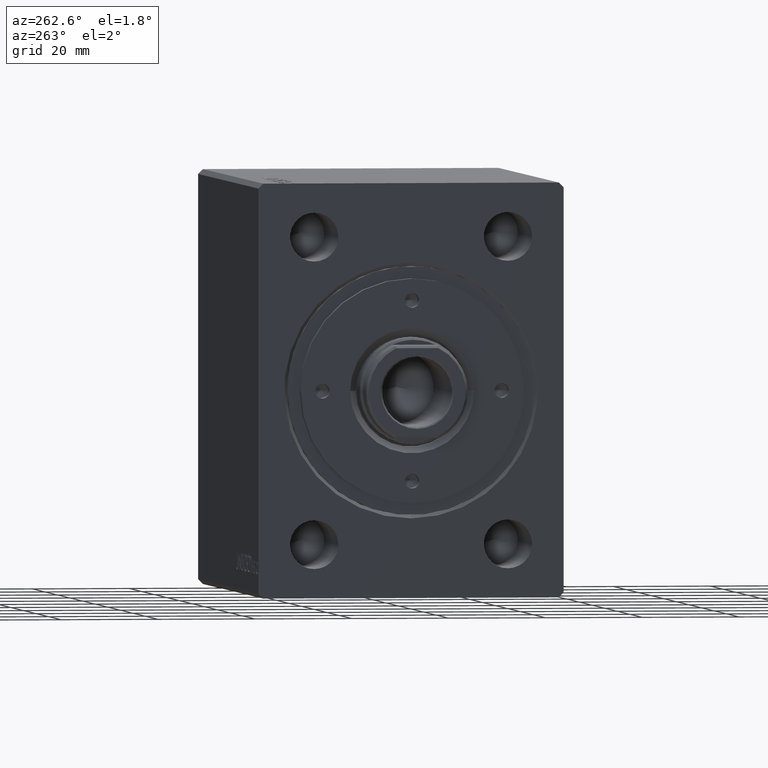
[diagram: clean part render]
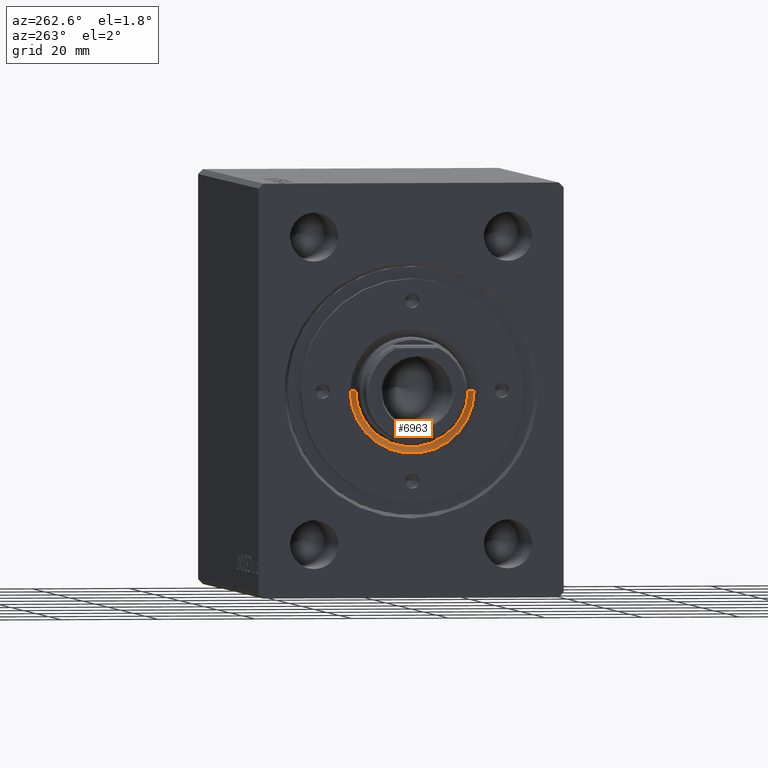
[diagram: same view with one face highlighted and labeled with its STEP entity id]
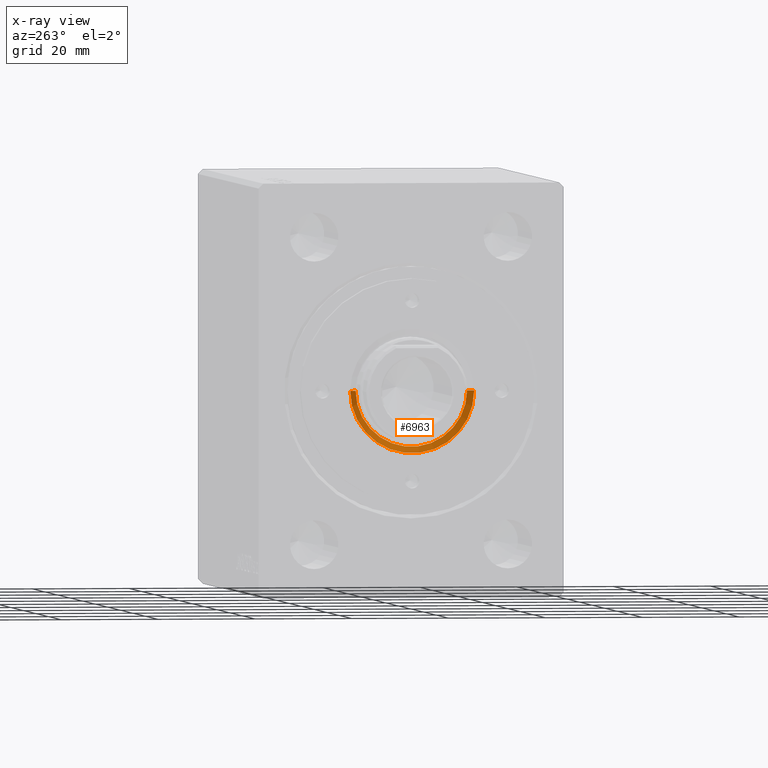
[diagram: x-ray of the same camera — body ghosted, the highlighted face saturated]
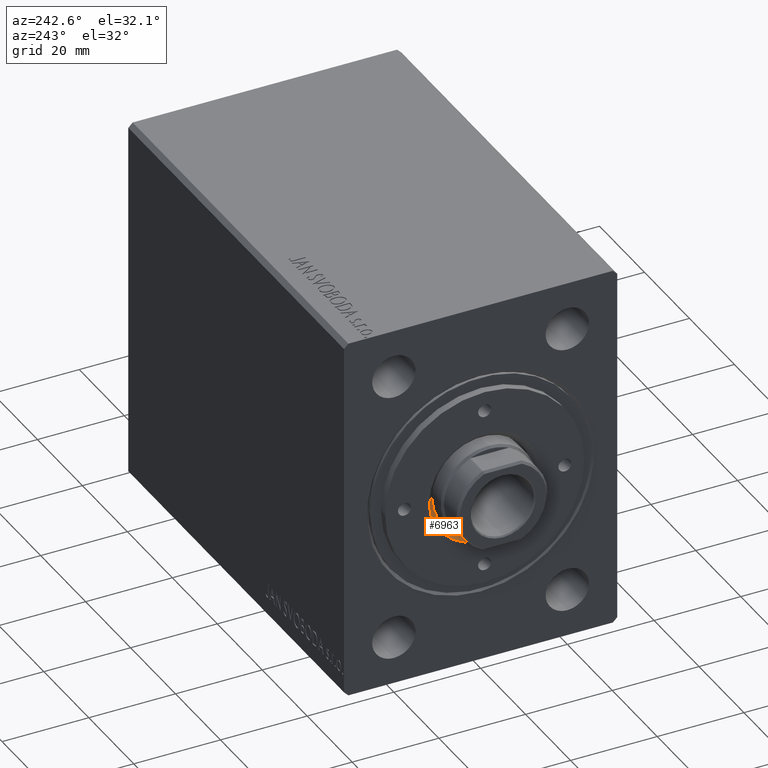
[diagram: same view with one face highlighted and labeled with its STEP entity id]
A machine part, auxiliary view. The second image highlights one B-rep face of the part: STEP entity #6963.
The next image is the same camera in x-ray: the body ghosted, the highlighted face saturated — about 0% of this face is hidden behind the body in this view.
A second angle (auxiliary view) of the same face is appended — the face is thin or edge-on in the first view.
In plain terms, the highlighted conical surface has half-angle 45 deg.
Its self-contained STEP definition (entity closure, byte-faithful):
#131 = CIRCLE ( 'NONE', #8703, 11.50000000000000000 ) ;
#2182 = EDGE_CURVE ( 'NONE', #5259, #23991, #39663, .T. ) ;
#2441 = CARTESIAN_POINT ( 'NONE',  ( 12.79999999999997229, 0.000000000000000000, 72.79999999999998295 ) ) ;
#5259 = VERTEX_POINT ( 'NONE', #32463 ) ;
#6127 = EDGE_LOOP ( 'NONE', ( #24315, #24538, #11441, #27627 ) ) ;
#6963 = ADVANCED_FACE ( 'NONE', ( #12849 ), #7558, .F. ) ;
#7558 = CONICAL_SURFACE ( 'NONE', #22496, 10.99999999999995559, 0.7853981633974538301 ) ;
#8703 = AXIS2_PLACEMENT_3D ( 'NONE', #35963, #42867, #33278 ) ;
#9296 = CARTESIAN_POINT ( 'NONE',  ( 0.000000000000000000, 0.000000000000000000, 71.00000000000000000 ) ) ;
#9701 = CARTESIAN_POINT ( 'NONE',  ( -12.79999999999997229, 1.567547902908608634E-15, 72.79999999999998295 ) ) ;
#10177 = DIRECTION ( 'NONE',  ( 1.000000000000000000, 0.000000000000000000, 0.000000000000000000 ) ) ;
#10775 = EDGE_CURVE ( 'NONE', #42525, #25262, #15189, .T. ) ;
#11441 = ORIENTED_EDGE ( 'NONE', *, *, #2182, .T. ) ;
#12040 = CARTESIAN_POINT ( 'NONE',  ( 10.99999999999995559, 0.000000000000000000, 71.00000000000000000 ) ) ;
#12489 = VECTOR ( 'NONE', #29224, 1000.000000000000000 ) ;
#12849 = FACE_OUTER_BOUND ( 'NONE', #6127, .T. ) ;
#14629 = CIRCLE ( 'NONE', #19610, 12.79999999999997051 ) ;
#15189 = LINE ( 'NONE', #35246, #12489 ) ;
#16410 = DIRECTION ( 'NONE',  ( 0.000000000000000000, 0.000000000000000000, 1.000000000000000000 ) ) ;
#19610 = AXIS2_PLACEMENT_3D ( 'NONE', #28608, #31729, #38613 ) ;
#22496 = AXIS2_PLACEMENT_3D ( 'NONE', #9296, #16410, #10177 ) ;
#23797 = CARTESIAN_POINT ( 'NONE',  ( -11.50000000000000000, 1.408343819019456176E-15, 71.50000000000004263 ) ) ;
#23991 = VERTEX_POINT ( 'NONE', #2441 ) ;
#24315 = ORIENTED_EDGE ( 'NONE', *, *, #10775, .F. ) ;
#24531 = VECTOR ( 'NONE', #35653, 1000.000000000000000 ) ;
#24538 = ORIENTED_EDGE ( 'NONE', *, *, #42327, .F. ) ;
#25262 = VERTEX_POINT ( 'NONE', #9701 ) ;
#27627 = ORIENTED_EDGE ( 'NONE', *, *, #30603, .F. ) ;
#28608 = CARTESIAN_POINT ( 'NONE',  ( 0.000000000000000000, 0.000000000000000000, 72.79999999999998295 ) ) ;
#29224 = DIRECTION ( 'NONE',  ( -0.7071067811865514585, 8.659560562354980929E-17, 0.7071067811865435759 ) ) ;
#30603 = EDGE_CURVE ( 'NONE', #25262, #23991, #14629, .T. ) ;
#31729 = DIRECTION ( 'NONE',  ( -0.000000000000000000, -0.000000000000000000, -1.000000000000000000 ) ) ;
#32463 = CARTESIAN_POINT ( 'NONE',  ( 11.50000000000000000, 0.000000000000000000, 71.50000000000004263 ) ) ;
#33278 = DIRECTION ( 'NONE',  ( 1.000000000000000000, 0.000000000000000000, 0.000000000000000000 ) ) ;
#35246 = CARTESIAN_POINT ( 'NONE',  ( -10.99999999999995559, 1.347111479062083277E-15, 71.00000000000000000 ) ) ;
#35653 = DIRECTION ( 'NONE',  ( 0.7071067811865514585, 0.000000000000000000, 0.7071067811865435759 ) ) ;
#35963 = CARTESIAN_POINT ( 'NONE',  ( 0.000000000000000000, 0.000000000000000000, 71.50000000000004263 ) ) ;
#38613 = DIRECTION ( 'NONE',  ( 1.000000000000000000, 0.000000000000000000, 0.000000000000000000 ) ) ;
#39663 = LINE ( 'NONE', #12040, #24531 ) ;
#42327 = EDGE_CURVE ( 'NONE', #5259, #42525, #131, .T. ) ;
#42525 = VERTEX_POINT ( 'NONE', #23797 ) ;
#42867 = DIRECTION ( 'NONE',  ( 0.000000000000000000, 0.000000000000000000, 1.000000000000000000 ) ) ;